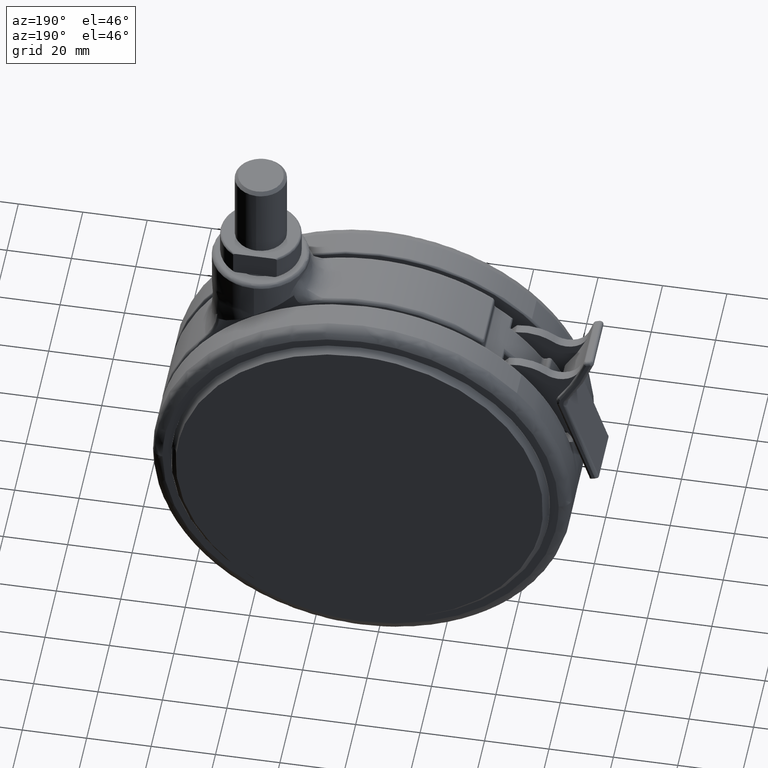
[diagram: clean part render]
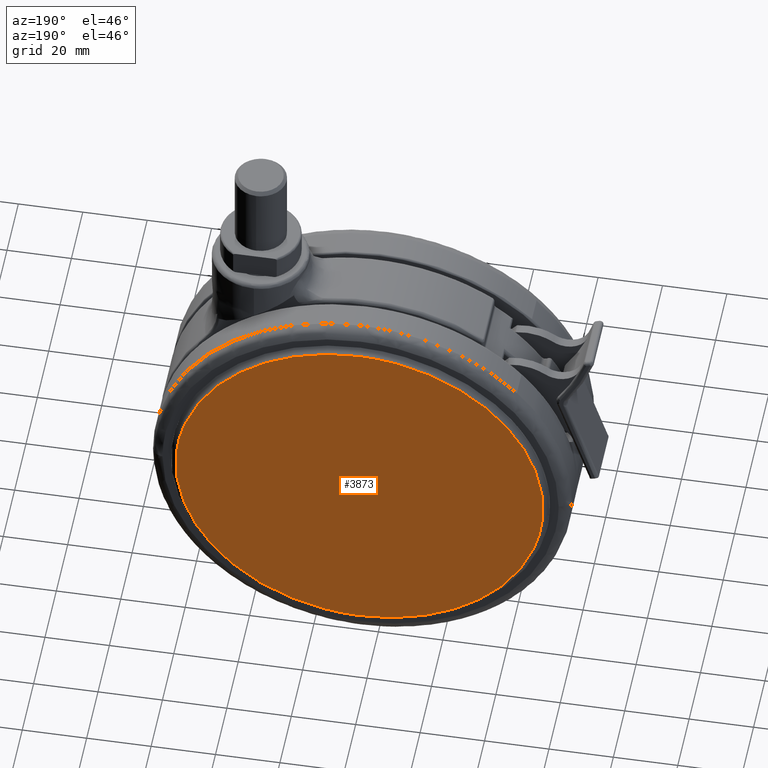
[diagram: same view with one face highlighted and labeled with its STEP entity id]
A machine part, auxiliary view. The second image highlights one B-rep face of the part: STEP entity #3873.
In plain terms, the highlighted face is a freeform B-spline surface patch.
Its self-contained STEP definition (entity closure, byte-faithful):
#3802=CARTESIAN_POINT('',(27.681095302792080,25.0,-8.805700220954233));
#3803=CARTESIAN_POINT('',(27.681095302792080,25.0,-134.194302836764110));
#3804=CARTESIAN_POINT('',(-97.681093264361920,25.0,-8.805700220954234));
#3805=CARTESIAN_POINT('',(-97.681093264361920,25.0,-134.194302836764110));
#3806=B_SPLINE_SURFACE_WITH_KNOTS('',1,1,((#3802,#3804),(#3803,#3805)),.UNSPECIFIED.,.F.,.F.,.U.,(2,2),(2,2),(0.0,125.388602615809900),(0.0,125.362188567154010),.UNSPECIFIED.);
#3807=CARTESIAN_POINT('',(-35.0,24.999999999999989,-14.500000000000110));
#3808=VERTEX_POINT('',#3807);
#3809=CARTESIAN_POINT('',(21.838057314905349,24.999999999354170,-67.206372084848383));
#3810=VERTEX_POINT('',#3809);
#3811=CARTESIAN_POINT('',(-35.0,24.999999999999989,-14.500000000000110));
#3812=CARTESIAN_POINT('',(17.856542794842841,24.999999999677069,-14.499999999997984));
#3813=CARTESIAN_POINT('',(21.838057314905349,24.999999999354170,-67.206372084848383));
#3821=(BOUNDED_CURVE()B_SPLINE_CURVE(2,(#3811,#3812,#3813),.UNSPECIFIED.,.F.,.U.)B_SPLINE_CURVE_WITH_KNOTS((3,3),(0.0,0.236870159262180),.UNSPECIFIED.)CURVE()GEOMETRIC_REPRESENTATION_ITEM()RATIONAL_B_SPLINE_CURVE((1.0,0.722489346451380,0.970850634526866))REPRESENTATION_ITEM(''));
#3822=EDGE_CURVE('',#3808,#3810,#3821,.T.);
#3823=ORIENTED_EDGE('',*,*,#3822,.T.);
#3824=CARTESIAN_POINT('',(-35.0,25.0,-128.500000000000000));
#3825=VERTEX_POINT('',#3824);
#3826=CARTESIAN_POINT('',(21.838057314905345,24.999999999354163,-67.206372084848383));
#3827=CARTESIAN_POINT('',(22.000000000053586,24.999999999365457,-69.350132047782736));
#3828=CARTESIAN_POINT('',(22.000000000052552,24.999999999377639,-71.499999999996021));
#3829=CARTESIAN_POINT('',(22.000000000025281,24.999999999700560,-128.499999999998100));
#3830=CARTESIAN_POINT('',(-35.0,25.0,-128.500000000000000));
#3838=(BOUNDED_CURVE()B_SPLINE_CURVE(2,(#3826,#3827,#3828,#3829,#3830),.UNSPECIFIED.,.F.,.U.)B_SPLINE_CURVE_WITH_KNOTS((3,2,3),(0.236870159262180,0.250000000000000,0.500000000000000),.UNSPECIFIED.)CURVE()GEOMETRIC_REPRESENTATION_ITEM()RATIONAL_B_SPLINE_CURVE((0.970850634526866,0.984617434735168,1.0,0.707106781186547,1.0))REPRESENTATION_ITEM(''));
#3839=EDGE_CURVE('',#3810,#3825,#3838,.T.);
#3840=ORIENTED_EDGE('',*,*,#3839,.T.);
#3841=CARTESIAN_POINT('',(-91.838057314905356,24.999999999354170,-75.793627915151632));
#3842=VERTEX_POINT('',#3841);
#3843=CARTESIAN_POINT('',(-35.0,25.0,-128.500000000000000));
#3844=CARTESIAN_POINT('',(-87.856542794842838,24.999999999677083,-128.500000000002050));
#3845=CARTESIAN_POINT('',(-91.838057314905356,24.999999999354170,-75.793627915151632));
#3853=(BOUNDED_CURVE()B_SPLINE_CURVE(2,(#3843,#3844,#3845),.UNSPECIFIED.,.F.,.U.)B_SPLINE_CURVE_WITH_KNOTS((3,3),(0.500000000000000,0.736870159262180),.UNSPECIFIED.)CURVE()GEOMETRIC_REPRESENTATION_ITEM()RATIONAL_B_SPLINE_CURVE((1.0,0.722489346451380,0.970850634526866))REPRESENTATION_ITEM(''));
#3854=EDGE_CURVE('',#3825,#3842,#3853,.T.);
#3855=ORIENTED_EDGE('',*,*,#3854,.T.);
#3856=CARTESIAN_POINT('',(-91.838057314905356,24.999999999354170,-75.793627915151632));
#3857=CARTESIAN_POINT('',(-92.000000000053575,24.999999999365460,-73.649867952217249));
#3858=CARTESIAN_POINT('',(-92.000000000052552,24.999999999377639,-71.500000000003979));
#3859=CARTESIAN_POINT('',(-92.000000000025295,24.999999999700545,-14.500000000001968));
#3860=CARTESIAN_POINT('',(-35.0,24.999999999999989,-14.500000000000110));
#3868=(BOUNDED_CURVE()B_SPLINE_CURVE(2,(#3856,#3857,#3858,#3859,#3860),.UNSPECIFIED.,.F.,.U.)B_SPLINE_CURVE_WITH_KNOTS((3,2,3),(0.736870159262180,0.750000000000000,1.0),.UNSPECIFIED.)CURVE()GEOMETRIC_REPRESENTATION_ITEM()RATIONAL_B_SPLINE_CURVE((0.970850634526866,0.984617434735168,1.0,0.707106781186547,1.0))REPRESENTATION_ITEM(''));
#3869=EDGE_CURVE('',#3842,#3808,#3868,.T.);
#3870=ORIENTED_EDGE('',*,*,#3869,.T.);
#3871=EDGE_LOOP('',(#3823,#3840,#3855,#3870));
#3872=FACE_OUTER_BOUND('',#3871,.T.);
#3873=ADVANCED_FACE('',(#3872),#3806,.T.);